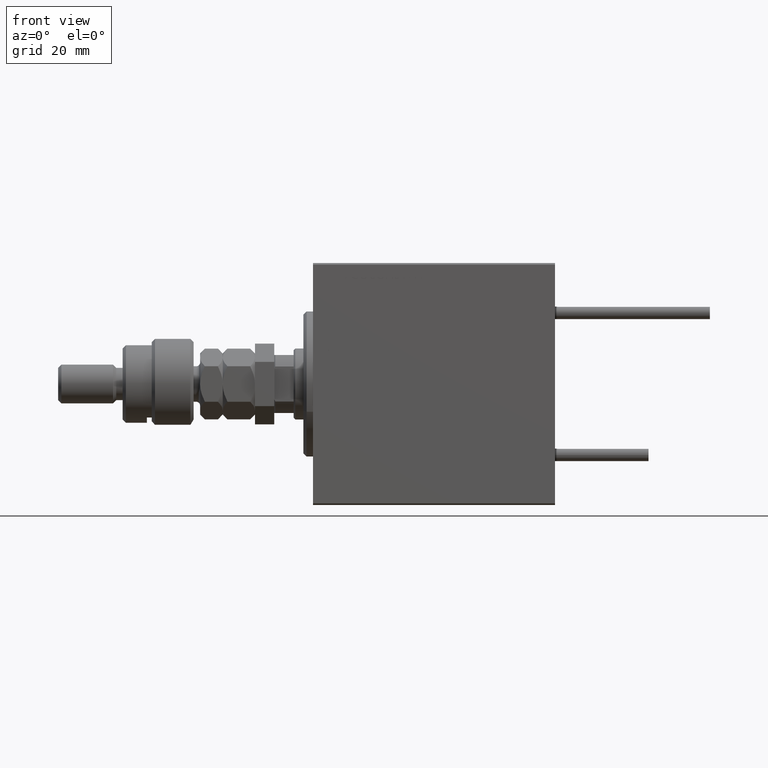
[diagram: clean part render]
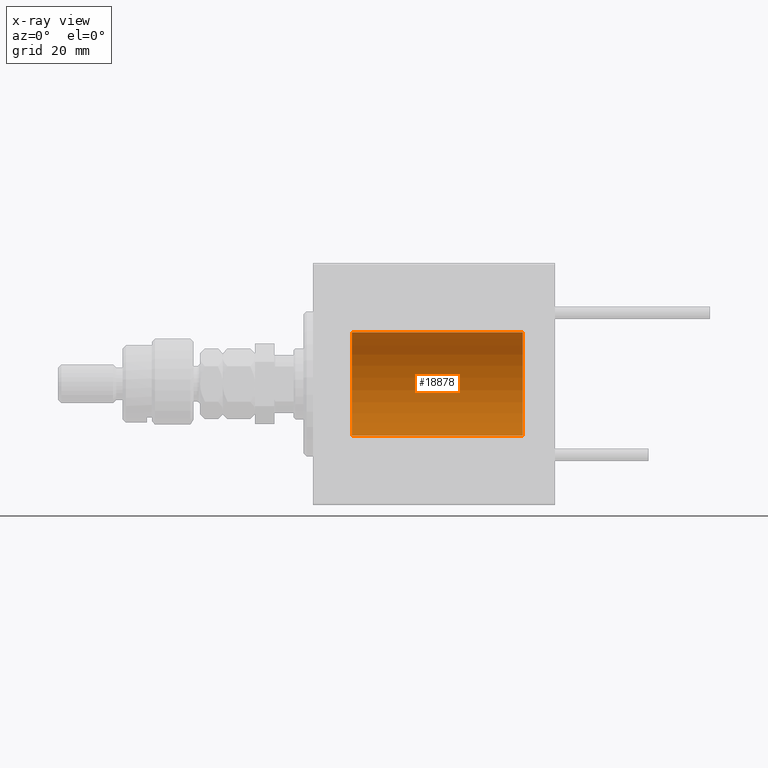
[diagram: x-ray — body ghosted, one internal face saturated and labeled with its STEP entity id]
A machine part, front view, then the same camera in x-ray: the body is ghosted and one INTERNAL B-rep face — a face not visible from any outside direction — is saturated and labeled: STEP entity #18878.
In plain terms, the highlighted cylindrical surface (partial cylindrical patch) has radius 16 mm, axis along (-1, -0, -0).
Its self-contained STEP definition (entity closure, byte-faithful):
#2161 = DIRECTION ( 'NONE',  ( 0.000000000000000000, 0.000000000000000000, 1.000000000000000000 ) ) ;
#3353 = CARTESIAN_POINT ( 'NONE',  ( 11.99999999999999645, 0.000000000000000000, 0.000000000000000000 ) ) ;
#3745 = LINE ( 'NONE', #20011, #44564 ) ;
#5930 = DIRECTION ( 'NONE',  ( 0.000000000000000000, 0.000000000000000000, 1.000000000000000000 ) ) ;
#9534 = VERTEX_POINT ( 'NONE', #32895 ) ;
#10009 = CIRCLE ( 'NONE', #37231, 16.00000000000000000 ) ;
#13672 = CARTESIAN_POINT ( 'NONE',  ( 65.00000000000000000, 0.000000000000000000, 0.000000000000000000 ) ) ;
#15552 = EDGE_CURVE ( 'NONE', #43885, #32566, #10009, .T. ) ;
#16010 = DIRECTION ( 'NONE',  ( -1.000000000000000000, -0.000000000000000000, -0.000000000000000000 ) ) ;
#18442 = CARTESIAN_POINT ( 'NONE',  ( 65.00000000000000000, 0.000000000000000000, 0.000000000000000000 ) ) ;
#18878 = ADVANCED_FACE ( 'NONE', ( #46723 ), #29948, .F. ) ;
#20011 = CARTESIAN_POINT ( 'NONE',  ( 65.00000000000000000, 0.000000000000000000, 16.00000000000000000 ) ) ;
#20574 = CARTESIAN_POINT ( 'NONE',  ( 65.00000000000000000, 1.959434878635765131E-15, -16.00000000000000000 ) ) ;
#24781 = EDGE_CURVE ( 'NONE', #9534, #45663, #50266, .T. ) ;
#27273 = AXIS2_PLACEMENT_3D ( 'NONE', #3353, #39375, #43616 ) ;
#29948 = CYLINDRICAL_SURFACE ( 'NONE', #38115, 16.00000000000000000 ) ;
#30713 = DIRECTION ( 'NONE',  ( -1.000000000000000000, 0.000000000000000000, 0.000000000000000000 ) ) ;
#31502 = EDGE_LOOP ( 'NONE', ( #50938, #48696, #47374, #47981 ) ) ;
#31541 = DIRECTION ( 'NONE',  ( -1.000000000000000000, -0.000000000000000000, -0.000000000000000000 ) ) ;
#32566 = VERTEX_POINT ( 'NONE', #48145 ) ;
#32788 = VECTOR ( 'NONE', #31541, 1000.000000000000000 ) ;
#32895 = CARTESIAN_POINT ( 'NONE',  ( 11.99999999999999645, 0.000000000000000000, 16.00000000000000000 ) ) ;
#35256 = EDGE_CURVE ( 'NONE', #43885, #9534, #3745, .T. ) ;
#36261 = CARTESIAN_POINT ( 'NONE',  ( 11.99999999999999645, 1.959434878635765131E-15, -16.00000000000000000 ) ) ;
#37231 = AXIS2_PLACEMENT_3D ( 'NONE', #18442, #30713, #2161 ) ;
#38115 = AXIS2_PLACEMENT_3D ( 'NONE', #13672, #43253, #5930 ) ;
#39375 = DIRECTION ( 'NONE',  ( -1.000000000000000000, 0.000000000000000000, 0.000000000000000000 ) ) ;
#43253 = DIRECTION ( 'NONE',  ( -1.000000000000000000, -0.000000000000000000, -0.000000000000000000 ) ) ;
#43616 = DIRECTION ( 'NONE',  ( 0.000000000000000000, 0.000000000000000000, 1.000000000000000000 ) ) ;
#43885 = VERTEX_POINT ( 'NONE', #44745 ) ;
#44046 = LINE ( 'NONE', #20574, #32788 ) ;
#44564 = VECTOR ( 'NONE', #16010, 1000.000000000000000 ) ;
#44745 = CARTESIAN_POINT ( 'NONE',  ( 65.00000000000000000, 0.000000000000000000, 16.00000000000000000 ) ) ;
#45419 = EDGE_CURVE ( 'NONE', #32566, #45663, #44046, .T. ) ;
#45663 = VERTEX_POINT ( 'NONE', #36261 ) ;
#46723 = FACE_OUTER_BOUND ( 'NONE', #31502, .T. ) ;
#47374 = ORIENTED_EDGE ( 'NONE', *, *, #35256, .T. ) ;
#47981 = ORIENTED_EDGE ( 'NONE', *, *, #24781, .T. ) ;
#48145 = CARTESIAN_POINT ( 'NONE',  ( 65.00000000000000000, 1.959434878635765131E-15, -16.00000000000000000 ) ) ;
#48696 = ORIENTED_EDGE ( 'NONE', *, *, #15552, .F. ) ;
#50266 = CIRCLE ( 'NONE', #27273, 16.00000000000000000 ) ;
#50938 = ORIENTED_EDGE ( 'NONE', *, *, #45419, .F. ) ;